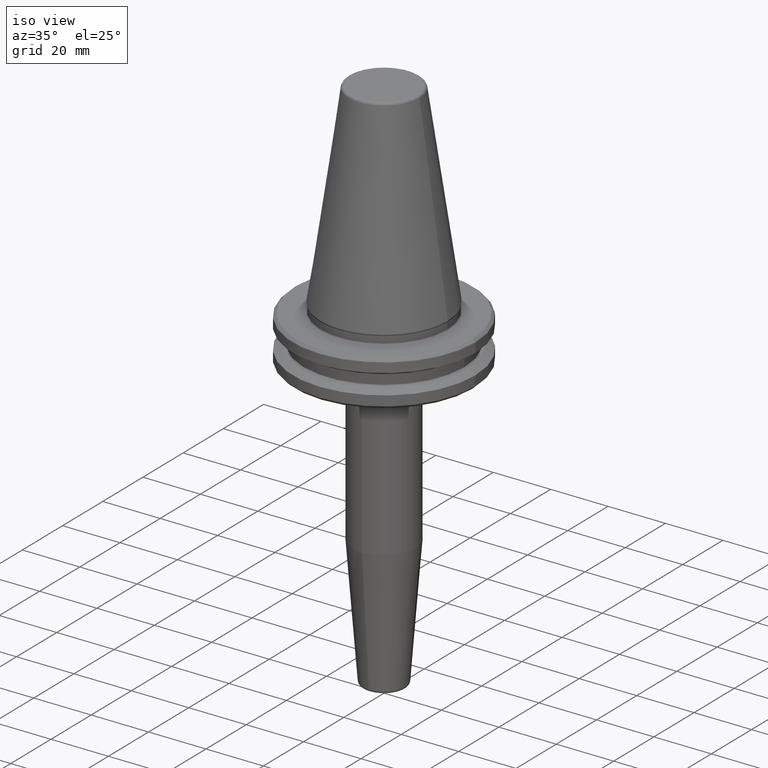
[diagram: clean part render]
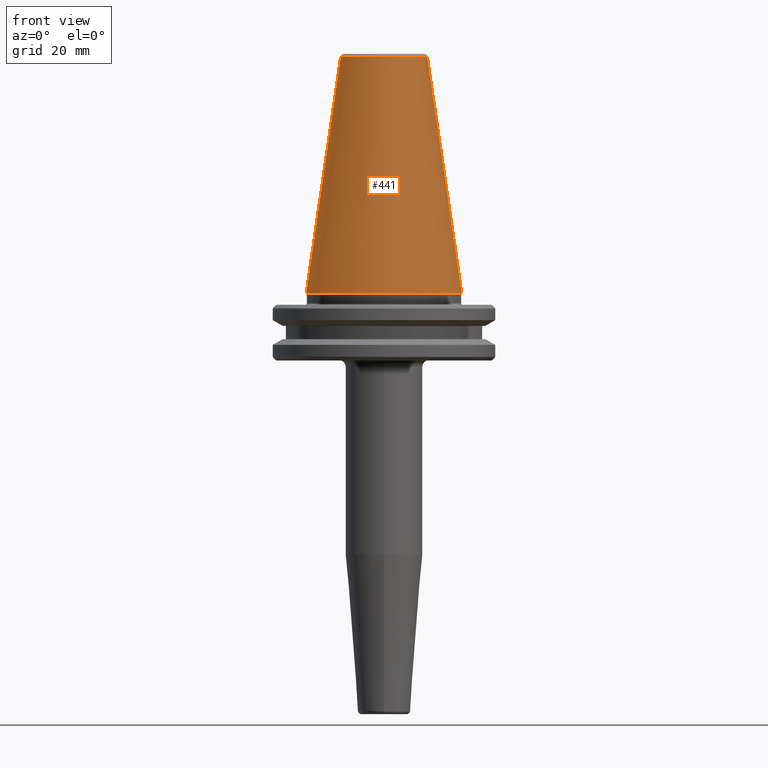
[diagram: tour spotlight — one face highlighted and labeled with its STEP entity id]
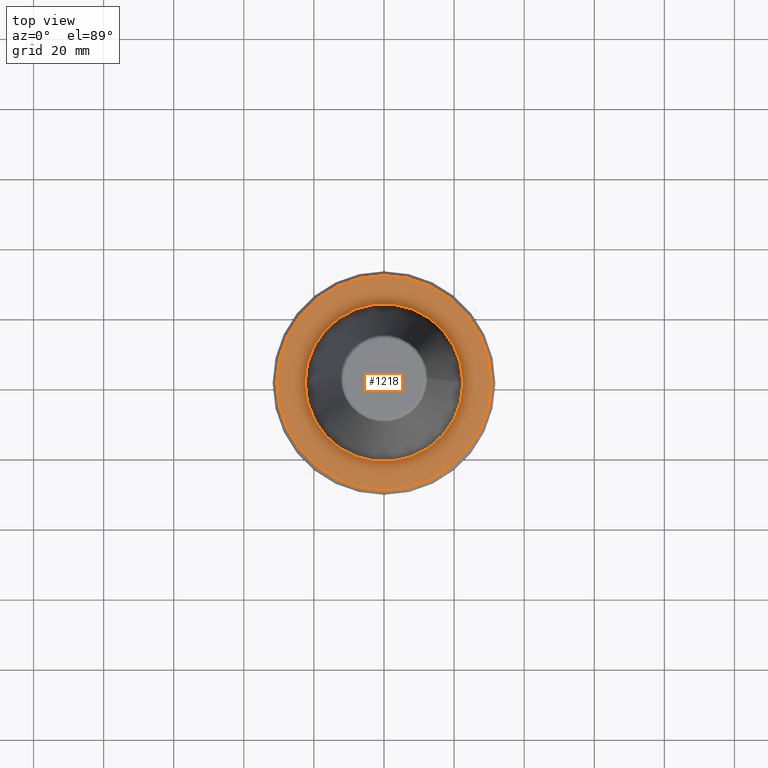
[diagram: tour spotlight — one face highlighted and labeled with its STEP entity id]
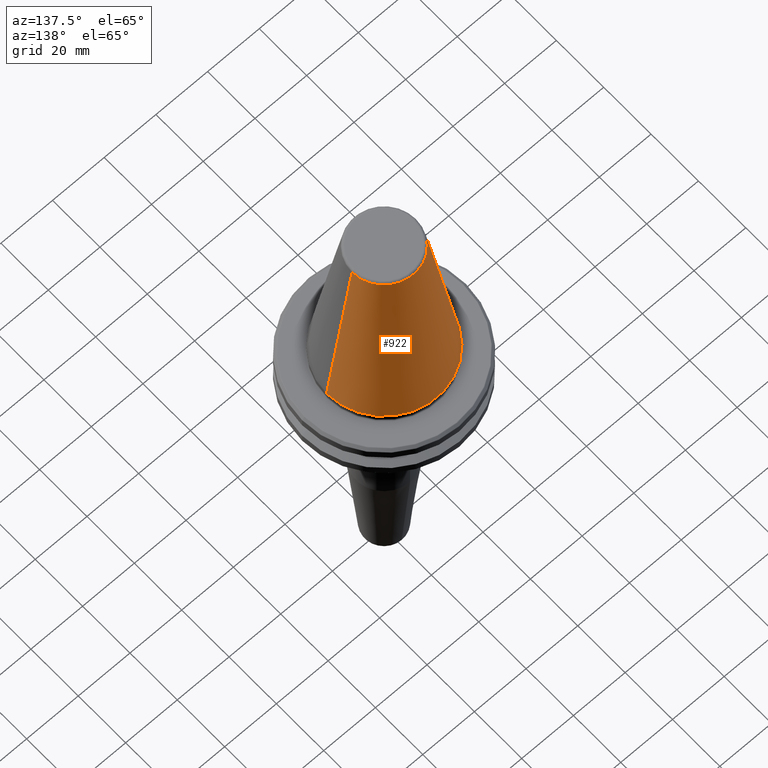
[diagram: tour spotlight — one face highlighted and labeled with its STEP entity id]
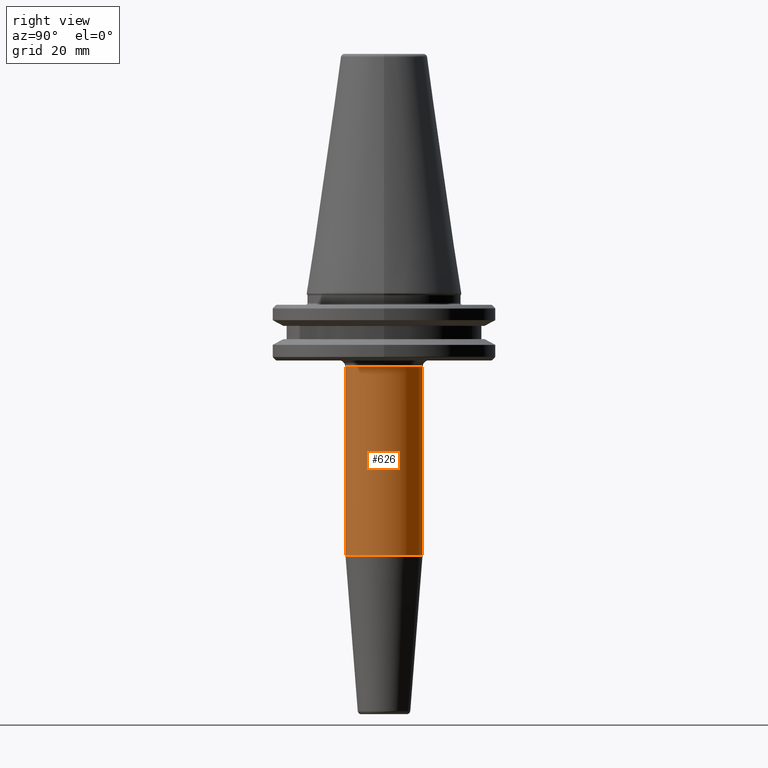
[diagram: tour spotlight — one face highlighted and labeled with its STEP entity id]
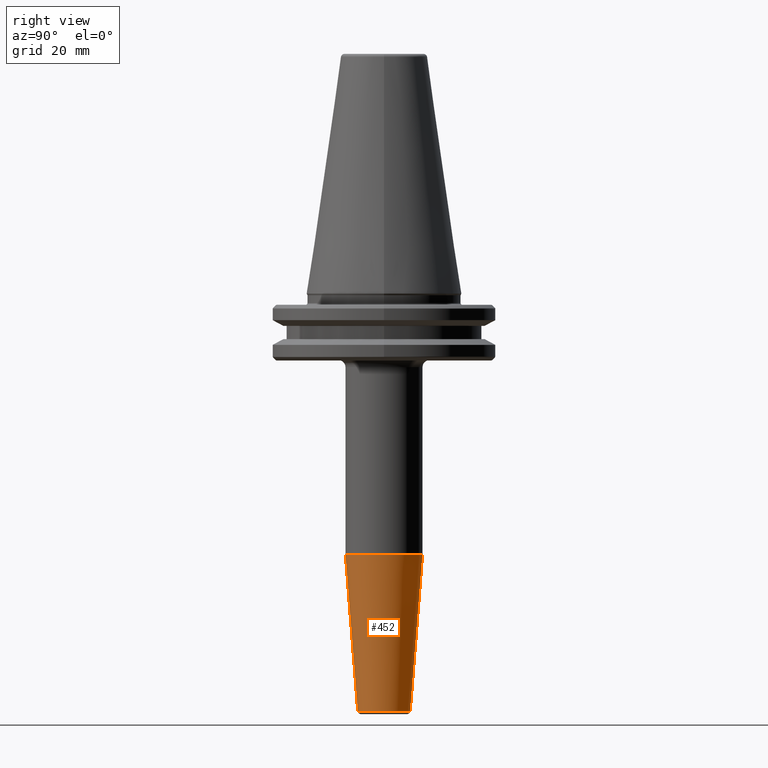
[diagram: tour spotlight — one face highlighted and labeled with its STEP entity id]
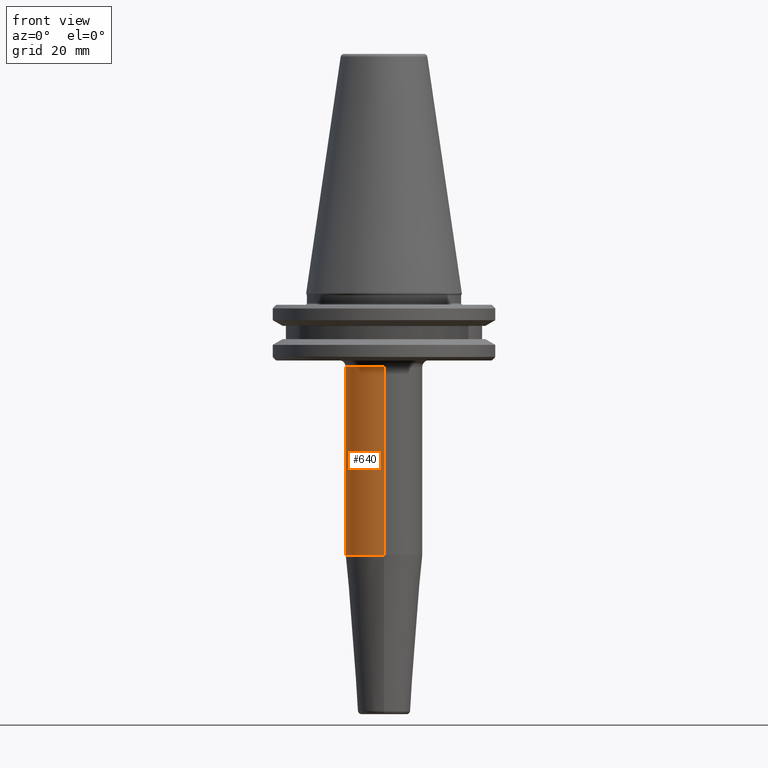
[diagram: tour spotlight — one face highlighted and labeled with its STEP entity id]
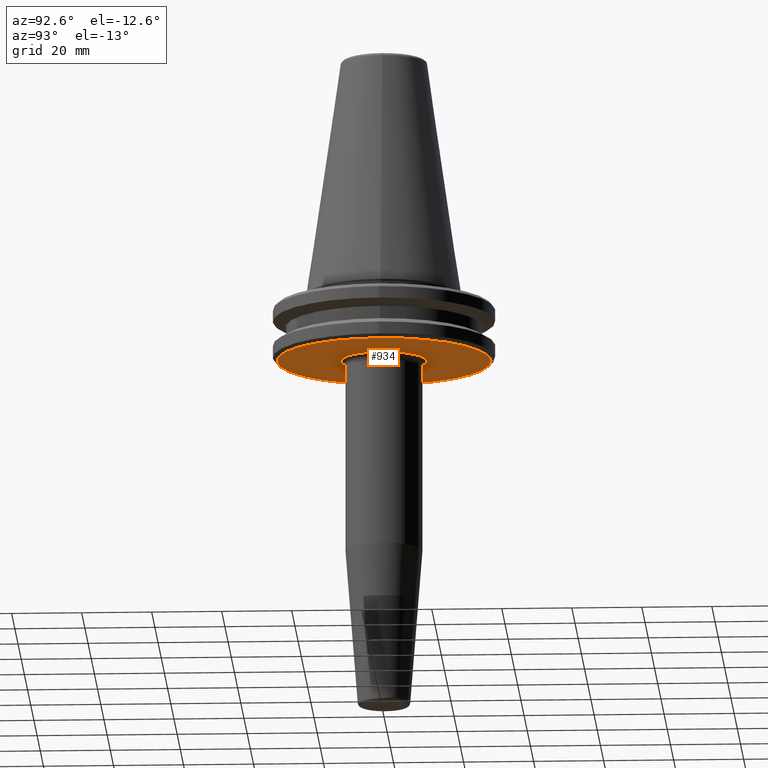
[diagram: tour spotlight — one face highlighted and labeled with its STEP entity id]
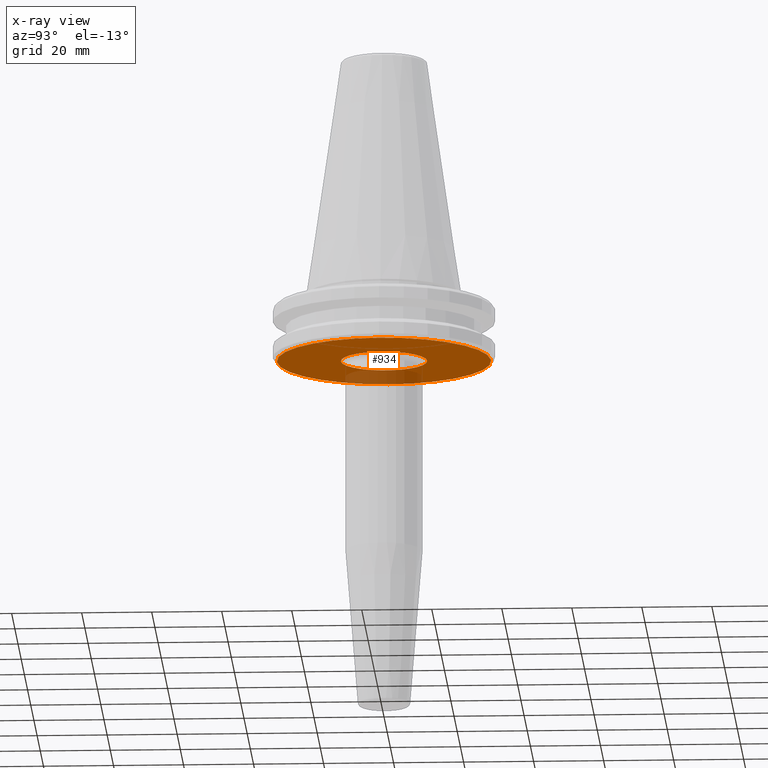
[diagram: x-ray of the same camera — body ghosted, this tour face saturated]
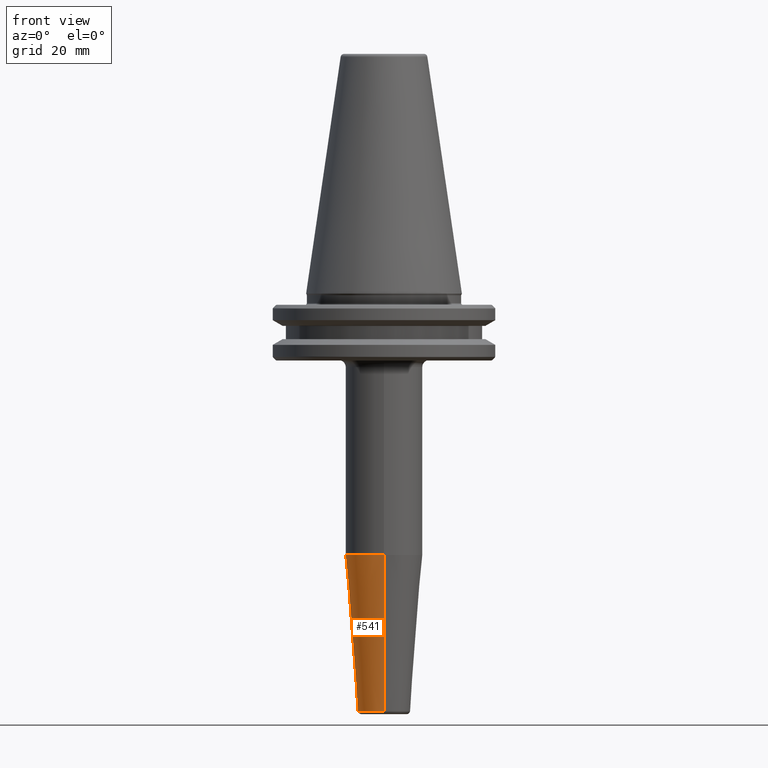
[diagram: tour spotlight — one face highlighted and labeled with its STEP entity id]
A machine part: a face-by-face anatomy tour. The part has 46 B-rep faces; the first image is the clean iso view, then the 8 largest visible faces are spotlighted one at a time (largest first), each with its STEP entity span.

Face 1 — front view, entity #441. In plain terms, the highlighted conical surface has half-angle 8.297 deg.
Definition (entity closure, byte-faithful):
#16 = AXIS2_PLACEMENT_3D ( 'NONE', #113, #208, #683 ) ;
#37 = CARTESIAN_POINT ( 'NONE',  ( 12.37469537611110800, 1.515463108277802100E-015, 67.54430822726729400 ) ) ;
#100 = CARTESIAN_POINT ( 'NONE',  ( 22.22500000000000500, 0.0000000000000000000, 0.0000000000000000000 ) ) ;
#105 = AXIS2_PLACEMENT_3D ( 'NONE', #819, #537, #444 ) ;
#113 = CARTESIAN_POINT ( 'NONE',  ( 0.0000000000000000000, 0.0000000000000000000, 67.54430822726729400 ) ) ;
#208 = DIRECTION ( 'NONE',  ( -0.0000000000000000000, -0.0000000000000000000, 1.000000000000000000 ) ) ;
#237 = VECTOR ( 'NONE', #944, 1000.000000000000000 ) ;
#240 = CARTESIAN_POINT ( 'NONE',  ( 0.0000000000000000000, 0.0000000000000000000, 0.0000000000000000000 ) ) ;
#338 = CIRCLE ( 'NONE', #16, 12.37469537611110800 ) ;
#361 = VERTEX_POINT ( 'NONE', #518 ) ;
#404 = VECTOR ( 'NONE', #1011, 1000.000000000000000 ) ;
#417 = VERTEX_POINT ( 'NONE', #894 ) ;
#441 = ADVANCED_FACE ( 'NONE', ( #953 ), #1137, .T. ) ;
#444 = DIRECTION ( 'NONE',  ( -1.000000000000000000, 0.0000000000000000000, 0.0000000000000000000 ) ) ;
#468 = ORIENTED_EDGE ( 'NONE', *, *, #601, .F. ) ;
#518 = CARTESIAN_POINT ( 'NONE',  ( -22.22500000000000500, 2.721777511104993200E-015, 0.0000000000000000000 ) ) ;
#528 = EDGE_CURVE ( 'NONE', #632, #417, #338, .T. ) ;
#533 = VERTEX_POINT ( 'NONE', #100 ) ;
#537 = DIRECTION ( 'NONE',  ( 0.0000000000000000000, 0.0000000000000000000, -1.000000000000000000 ) ) ;
#601 = EDGE_CURVE ( 'NONE', #417, #533, #655, .T. ) ;
#612 = AXIS2_PLACEMENT_3D ( 'NONE', #240, #1139, #1045 ) ;
#632 = VERTEX_POINT ( 'NONE', #984 ) ;
#655 = LINE ( 'NONE', #37, #404 ) ;
#683 = DIRECTION ( 'NONE',  ( 1.000000000000000000, 0.0000000000000000000, 0.0000000000000000000 ) ) ;
#690 = EDGE_LOOP ( 'NONE', ( #468, #831, #972, #1252 ) ) ;
#819 = CARTESIAN_POINT ( 'NONE',  ( 0.0000000000000000000, 0.0000000000000000000, 67.54430822726729400 ) ) ;
#820 = EDGE_CURVE ( 'NONE', #632, #361, #1009, .T. ) ;
#831 = ORIENTED_EDGE ( 'NONE', *, *, #528, .F. ) ;
#854 = EDGE_CURVE ( 'NONE', #361, #533, #1199, .T. ) ;
#894 = CARTESIAN_POINT ( 'NONE',  ( 12.37469537611110800, 2.118620309691397700E-015, 67.54430822726729400 ) ) ;
#944 = DIRECTION ( 'NONE',  ( -0.1443082272673071000, 0.0000000000000000000, -0.9895327864921743500 ) ) ;
#953 = FACE_OUTER_BOUND ( 'NONE', #690, .T. ) ;
#972 = ORIENTED_EDGE ( 'NONE', *, *, #820, .T. ) ;
#984 = CARTESIAN_POINT ( 'NONE',  ( -12.37469537611110800, 0.0000000000000000000, 67.54430822726729400 ) ) ;
#1009 = LINE ( 'NONE', #1014, #237 ) ;
#1011 = DIRECTION ( 'NONE',  ( 0.1443082272673071000, 1.767266086135364600E-017, -0.9895327864921743500 ) ) ;
#1014 = CARTESIAN_POINT ( 'NONE',  ( -12.37469537611110800, 0.0000000000000000000, 67.54430822726729400 ) ) ;
#1045 = DIRECTION ( 'NONE',  ( 1.000000000000000000, 0.0000000000000000000, 0.0000000000000000000 ) ) ;
#1137 = CONICAL_SURFACE ( 'NONE', #105, 12.37469537611110800, 0.1448138465474191100 ) ;
#1139 = DIRECTION ( 'NONE',  ( -0.0000000000000000000, -0.0000000000000000000, 1.000000000000000000 ) ) ;
#1199 = CIRCLE ( 'NONE', #612, 22.22500000000000500 ) ;
#1252 = ORIENTED_EDGE ( 'NONE', *, *, #854, .T. ) ;

Face 2 — top view, entity #1218. In plain terms, the highlighted planar face has unit normal (0, -0, 1).
Definition (entity closure, byte-faithful):
#35 = ORIENTED_EDGE ( 'NONE', *, *, #281, .T. ) ;
#39 = AXIS2_PLACEMENT_3D ( 'NONE', #358, #1031, #458 ) ;
#55 = CARTESIAN_POINT ( 'NONE',  ( 0.0000000000000000000, 0.0000000000000000000, -3.199999999999994400 ) ) ;
#58 = DIRECTION ( 'NONE',  ( -0.0000000000000000000, -0.0000000000000000000, 1.000000000000000000 ) ) ;
#80 = DIRECTION ( 'NONE',  ( 1.000000000000000000, 0.0000000000000000000, 0.0000000000000000000 ) ) ;
#121 = ORIENTED_EDGE ( 'NONE', *, *, #384, .F. ) ;
#170 = CARTESIAN_POINT ( 'NONE',  ( -22.50000000000000000, 2.755455298081544800E-015, -3.199999999999996600 ) ) ;
#194 = EDGE_LOOP ( 'NONE', ( #245, #35 ) ) ;
#245 = ORIENTED_EDGE ( 'NONE', *, *, #906, .T. ) ;
#281 = EDGE_CURVE ( 'NONE', #611, #427, #1116, .T. ) ;
#301 = DIRECTION ( 'NONE',  ( 1.000000000000000000, 0.0000000000000000000, 0.0000000000000000000 ) ) ;
#325 = AXIS2_PLACEMENT_3D ( 'NONE', #399, #880, #301 ) ;
#344 = EDGE_CURVE ( 'NONE', #636, #347, #748, .T. ) ;
#347 = VERTEX_POINT ( 'NONE', #170 ) ;
#358 = CARTESIAN_POINT ( 'NONE',  ( 0.0000000000000000000, 0.0000000000000000000, -3.200000000000000200 ) ) ;
#363 = CARTESIAN_POINT ( 'NONE',  ( 0.0000000000000000000, 0.0000000000000000000, -3.199999999999994400 ) ) ;
#384 = EDGE_CURVE ( 'NONE', #347, #636, #471, .T. ) ;
#399 = CARTESIAN_POINT ( 'NONE',  ( 0.0000000000000000000, 0.0000000000000000000, -3.199999999999994400 ) ) ;
#427 = VERTEX_POINT ( 'NONE', #1084 ) ;
#458 = DIRECTION ( 'NONE',  ( 1.000000000000000000, 0.0000000000000000000, 0.0000000000000000000 ) ) ;
#464 = FACE_BOUND ( 'NONE', #863, .T. ) ;
#471 = CIRCLE ( 'NONE', #325, 22.50000000000000000 ) ;
#472 = DIRECTION ( 'NONE',  ( -0.0000000000000000000, -0.0000000000000000000, 1.000000000000000000 ) ) ;
#514 = CARTESIAN_POINT ( 'NONE',  ( 22.50000000000000000, 0.0000000000000000000, -3.199999999999996600 ) ) ;
#552 = AXIS2_PLACEMENT_3D ( 'NONE', #638, #58, #735 ) ;
#589 = AXIS2_PLACEMENT_3D ( 'NONE', #55, #472, #80 ) ;
#611 = VERTEX_POINT ( 'NONE', #913 ) ;
#636 = VERTEX_POINT ( 'NONE', #514 ) ;
#638 = CARTESIAN_POINT ( 'NONE',  ( 0.0000000000000000000, 0.0000000000000000000, -3.199999999999994400 ) ) ;
#656 = AXIS2_PLACEMENT_3D ( 'NONE', #363, #850, #1237 ) ;
#735 = DIRECTION ( 'NONE',  ( 1.000000000000000000, 0.0000000000000000000, 0.0000000000000000000 ) ) ;
#748 = CIRCLE ( 'NONE', #589, 22.50000000000000000 ) ;
#850 = DIRECTION ( 'NONE',  ( -0.0000000000000000000, -0.0000000000000000000, 1.000000000000000000 ) ) ;
#863 = EDGE_LOOP ( 'NONE', ( #1189, #121 ) ) ;
#880 = DIRECTION ( 'NONE',  ( -0.0000000000000000000, -0.0000000000000000000, 1.000000000000000000 ) ) ;
#906 = EDGE_CURVE ( 'NONE', #427, #611, #914, .T. ) ;
#913 = CARTESIAN_POINT ( 'NONE',  ( -30.58431457505076200, 3.762817415969875600E-015, -3.199999999999994400 ) ) ;
#914 = CIRCLE ( 'NONE', #552, 30.58431457505076200 ) ;
#940 = PLANE ( 'NONE',  #39 ) ;
#976 = FACE_OUTER_BOUND ( 'NONE', #194, .T. ) ;
#1031 = DIRECTION ( 'NONE',  ( 0.0000000000000000000, -0.0000000000000000000, 1.000000000000000000 ) ) ;
#1084 = CARTESIAN_POINT ( 'NONE',  ( 30.58431457505076200, 0.0000000000000000000, -3.199999999999994400 ) ) ;
#1116 = CIRCLE ( 'NONE', #656, 30.58431457505076200 ) ;
#1189 = ORIENTED_EDGE ( 'NONE', *, *, #344, .F. ) ;
#1218 = ADVANCED_FACE ( 'NONE', ( #976, #464 ), #940, .T. ) ;
#1237 = DIRECTION ( 'NONE',  ( 1.000000000000000000, 0.0000000000000000000, 0.0000000000000000000 ) ) ;

Face 3 — auxiliary view, entity #922. In plain terms, the highlighted conical surface has half-angle 8.297 deg.
Definition (entity closure, byte-faithful):
#37 = CARTESIAN_POINT ( 'NONE',  ( 12.37469537611110800, 1.515463108277802100E-015, 67.54430822726729400 ) ) ;
#40 = EDGE_CURVE ( 'NONE', #533, #361, #298, .T. ) ;
#100 = CARTESIAN_POINT ( 'NONE',  ( 22.22500000000000500, 0.0000000000000000000, 0.0000000000000000000 ) ) ;
#102 = ORIENTED_EDGE ( 'NONE', *, *, #40, .T. ) ;
#107 = CONICAL_SURFACE ( 'NONE', #512, 12.37469537611110800, 0.1448138465474191100 ) ;
#149 = ORIENTED_EDGE ( 'NONE', *, *, #911, .F. ) ;
#164 = ORIENTED_EDGE ( 'NONE', *, *, #820, .F. ) ;
#237 = VECTOR ( 'NONE', #944, 1000.000000000000000 ) ;
#259 = CARTESIAN_POINT ( 'NONE',  ( 0.0000000000000000000, 0.0000000000000000000, 67.54430822726729400 ) ) ;
#298 = CIRCLE ( 'NONE', #1089, 22.22500000000000500 ) ;
#348 = DIRECTION ( 'NONE',  ( -1.000000000000000000, 0.0000000000000000000, 0.0000000000000000000 ) ) ;
#357 = DIRECTION ( 'NONE',  ( -0.0000000000000000000, -0.0000000000000000000, 1.000000000000000000 ) ) ;
#361 = VERTEX_POINT ( 'NONE', #518 ) ;
#400 = FACE_OUTER_BOUND ( 'NONE', #1012, .T. ) ;
#404 = VECTOR ( 'NONE', #1011, 1000.000000000000000 ) ;
#417 = VERTEX_POINT ( 'NONE', #894 ) ;
#512 = AXIS2_PLACEMENT_3D ( 'NONE', #259, #549, #348 ) ;
#518 = CARTESIAN_POINT ( 'NONE',  ( -22.22500000000000500, 2.721777511104993200E-015, 0.0000000000000000000 ) ) ;
#533 = VERTEX_POINT ( 'NONE', #100 ) ;
#545 = AXIS2_PLACEMENT_3D ( 'NONE', #939, #357, #1030 ) ;
#549 = DIRECTION ( 'NONE',  ( 0.0000000000000000000, 0.0000000000000000000, -1.000000000000000000 ) ) ;
#579 = DIRECTION ( 'NONE',  ( -0.0000000000000000000, -0.0000000000000000000, 1.000000000000000000 ) ) ;
#601 = EDGE_CURVE ( 'NONE', #417, #533, #655, .T. ) ;
#632 = VERTEX_POINT ( 'NONE', #984 ) ;
#650 = CIRCLE ( 'NONE', #545, 12.37469537611110800 ) ;
#655 = LINE ( 'NONE', #37, #404 ) ;
#679 = CARTESIAN_POINT ( 'NONE',  ( 0.0000000000000000000, 0.0000000000000000000, 0.0000000000000000000 ) ) ;
#820 = EDGE_CURVE ( 'NONE', #632, #361, #1009, .T. ) ;
#894 = CARTESIAN_POINT ( 'NONE',  ( 12.37469537611110800, 2.118620309691397700E-015, 67.54430822726729400 ) ) ;
#911 = EDGE_CURVE ( 'NONE', #417, #632, #650, .T. ) ;
#922 = ADVANCED_FACE ( 'NONE', ( #400 ), #107, .T. ) ;
#939 = CARTESIAN_POINT ( 'NONE',  ( 0.0000000000000000000, 0.0000000000000000000, 67.54430822726729400 ) ) ;
#944 = DIRECTION ( 'NONE',  ( -0.1443082272673071000, 0.0000000000000000000, -0.9895327864921743500 ) ) ;
#984 = CARTESIAN_POINT ( 'NONE',  ( -12.37469537611110800, 0.0000000000000000000, 67.54430822726729400 ) ) ;
#1009 = LINE ( 'NONE', #1014, #237 ) ;
#1011 = DIRECTION ( 'NONE',  ( 0.1443082272673071000, 1.767266086135364600E-017, -0.9895327864921743500 ) ) ;
#1012 = EDGE_LOOP ( 'NONE', ( #149, #1148, #102, #164 ) ) ;
#1014 = CARTESIAN_POINT ( 'NONE',  ( -12.37469537611110800, 0.0000000000000000000, 67.54430822726729400 ) ) ;
#1030 = DIRECTION ( 'NONE',  ( 1.000000000000000000, 0.0000000000000000000, 0.0000000000000000000 ) ) ;
#1089 = AXIS2_PLACEMENT_3D ( 'NONE', #679, #579, #1259 ) ;
#1148 = ORIENTED_EDGE ( 'NONE', *, *, #601, .T. ) ;
#1259 = DIRECTION ( 'NONE',  ( 1.000000000000000000, 0.0000000000000000000, 0.0000000000000000000 ) ) ;

Face 4 — right view, entity #626. In plain terms, the highlighted cylindrical surface (partial cylindrical patch) has radius 11 mm, axis along (-0, 0, -1).
Definition (entity closure, byte-faithful):
#34 = DIRECTION ( 'NONE',  ( -0.0000000000000000000, 1.946757673717420000E-016, -1.000000000000000000 ) ) ;
#42 = AXIS2_PLACEMENT_3D ( 'NONE', #396, #795, #778 ) ;
#95 = ORIENTED_EDGE ( 'NONE', *, *, #489, .F. ) ;
#108 = LINE ( 'NONE', #331, #853 ) ;
#156 = CARTESIAN_POINT ( 'NONE',  ( 0.0000000000000000000, 10.99999999999999800, -20.98284271247460400 ) ) ;
#184 = EDGE_CURVE ( 'NONE', #1215, #703, #186, .T. ) ;
#186 = LINE ( 'NONE', #983, #693 ) ;
#200 = DIRECTION ( 'NONE',  ( -0.0000000000000000000, 1.946757673717420000E-016, -1.000000000000000000 ) ) ;
#321 = ORIENTED_EDGE ( 'NONE', *, *, #502, .F. ) ;
#331 = CARTESIAN_POINT ( 'NONE',  ( 0.0000000000000000000, 11.00000000000001200, -120.0000000000000000 ) ) ;
#392 = CARTESIAN_POINT ( 'NONE',  ( 0.0000000000000000000, -11.00000000000001400, -74.60674251911153500 ) ) ;
#396 = CARTESIAN_POINT ( 'NONE',  ( 0.0000000000000000000, -6.440995650636750700E-015, -74.60674251911153500 ) ) ;
#436 = VERTEX_POINT ( 'NONE', #912 ) ;
#489 = EDGE_CURVE ( 'NONE', #1213, #436, #108, .T. ) ;
#502 = EDGE_CURVE ( 'NONE', #436, #703, #1105, .T. ) ;
#534 = CARTESIAN_POINT ( 'NONE',  ( 0.0000000000000000000, 2.395971582958279500E-015, -120.0000000000000000 ) ) ;
#615 = DIRECTION ( 'NONE',  ( 0.0000000000000000000, 1.000000000000000000, 0.0000000000000000000 ) ) ;
#626 = ADVANCED_FACE ( 'NONE', ( #627 ), #1108, .T. ) ;
#627 = FACE_OUTER_BOUND ( 'NONE', #1124, .T. ) ;
#693 = VECTOR ( 'NONE', #1255, 1000.000000000000000 ) ;
#703 = VERTEX_POINT ( 'NONE', #392 ) ;
#775 = CARTESIAN_POINT ( 'NONE',  ( 0.0000000000000000000, -1.688026949495919900E-014, -20.98284271247460700 ) ) ;
#778 = DIRECTION ( 'NONE',  ( 0.0000000000000000000, 1.000000000000000000, 0.0000000000000000000 ) ) ;
#788 = AXIS2_PLACEMENT_3D ( 'NONE', #775, #200, #873 ) ;
#795 = DIRECTION ( 'NONE',  ( -0.0000000000000000000, 1.946757673717420000E-016, -1.000000000000000000 ) ) ;
#835 = CARTESIAN_POINT ( 'NONE',  ( 1.347111479062091200E-015, -11.00000000000003400, -20.98284271247461100 ) ) ;
#853 = VECTOR ( 'NONE', #1160, 1000.000000000000000 ) ;
#873 = DIRECTION ( 'NONE',  ( 0.0000000000000000000, 1.000000000000000000, 3.154042683594190700E-016 ) ) ;
#912 = CARTESIAN_POINT ( 'NONE',  ( 1.347111479062089600E-015, 11.00000000000000200, -74.60674251911153500 ) ) ;
#983 = CARTESIAN_POINT ( 'NONE',  ( 1.347111479062090000E-015, -11.00000000000001100, -120.0000000000000000 ) ) ;
#995 = ORIENTED_EDGE ( 'NONE', *, *, #184, .T. ) ;
#1059 = EDGE_CURVE ( 'NONE', #1213, #1215, #1251, .T. ) ;
#1105 = CIRCLE ( 'NONE', #42, 11.00000000000000900 ) ;
#1108 = CYLINDRICAL_SURFACE ( 'NONE', #1115, 11.00000000000001100 ) ;
#1115 = AXIS2_PLACEMENT_3D ( 'NONE', #534, #34, #615 ) ;
#1124 = EDGE_LOOP ( 'NONE', ( #1236, #995, #321, #95 ) ) ;
#1160 = DIRECTION ( 'NONE',  ( -0.0000000000000000000, 1.946757673717420000E-016, -1.000000000000000000 ) ) ;
#1213 = VERTEX_POINT ( 'NONE', #156 ) ;
#1215 = VERTEX_POINT ( 'NONE', #835 ) ;
#1236 = ORIENTED_EDGE ( 'NONE', *, *, #1059, .T. ) ;
#1251 = CIRCLE ( 'NONE', #788, 11.00000000000001400 ) ;
#1255 = DIRECTION ( 'NONE',  ( -0.0000000000000000000, 1.946757673717420000E-016, -1.000000000000000000 ) ) ;

Face 5 — right view, entity #452. In plain terms, the highlighted conical surface has half-angle 4.5 deg.
Definition (entity closure, byte-faithful):
#20 = LINE ( 'NONE', #971, #249 ) ;
#36 = DIRECTION ( 'NONE',  ( 0.0000000000000000000, -1.946757673717420000E-016, 1.000000000000000000 ) ) ;
#42 = AXIS2_PLACEMENT_3D ( 'NONE', #396, #795, #778 ) ;
#90 = AXIS2_PLACEMENT_3D ( 'NONE', #542, #36, #812 ) ;
#114 = EDGE_CURVE ( 'NONE', #393, #703, #20, .T. ) ;
#131 = CARTESIAN_POINT ( 'NONE',  ( 0.0000000000000000000, 7.500000000000000000, -119.0784590957278200 ) ) ;
#155 = EDGE_CURVE ( 'NONE', #617, #393, #964, .T. ) ;
#221 = CARTESIAN_POINT ( 'NONE',  ( 9.184850993605146000E-016, 7.500000000000000000, -119.0784590957278200 ) ) ;
#249 = VECTOR ( 'NONE', #278, 1000.000000000000000 ) ;
#278 = DIRECTION ( 'NONE',  ( 0.0000000000000000000, -0.07845909572783692200, 0.9969173337331286300 ) ) ;
#366 = ORIENTED_EDGE ( 'NONE', *, *, #114, .F. ) ;
#381 = ORIENTED_EDGE ( 'NONE', *, *, #155, .F. ) ;
#392 = CARTESIAN_POINT ( 'NONE',  ( 0.0000000000000000000, -11.00000000000001400, -74.60674251911153500 ) ) ;
#393 = VERTEX_POINT ( 'NONE', #1074 ) ;
#396 = CARTESIAN_POINT ( 'NONE',  ( 0.0000000000000000000, -6.440995650636750700E-015, -74.60674251911153500 ) ) ;
#401 = FACE_OUTER_BOUND ( 'NONE', #619, .T. ) ;
#436 = VERTEX_POINT ( 'NONE', #912 ) ;
#450 = ORIENTED_EDGE ( 'NONE', *, *, #757, .T. ) ;
#452 = ADVANCED_FACE ( 'NONE', ( #401 ), #625, .T. ) ;
#491 = LINE ( 'NONE', #221, #1217 ) ;
#502 = EDGE_CURVE ( 'NONE', #436, #703, #1105, .T. ) ;
#542 = CARTESIAN_POINT ( 'NONE',  ( 0.0000000000000000000, 2.216569900254645900E-015, -119.0784590957278200 ) ) ;
#617 = VERTEX_POINT ( 'NONE', #131 ) ;
#619 = EDGE_LOOP ( 'NONE', ( #381, #450, #909, #366 ) ) ;
#625 = CONICAL_SURFACE ( 'NONE', #90, 7.499999999999997300, 0.07853981633973658400 ) ;
#703 = VERTEX_POINT ( 'NONE', #392 ) ;
#757 = EDGE_CURVE ( 'NONE', #617, #436, #491, .T. ) ;
#778 = DIRECTION ( 'NONE',  ( 0.0000000000000000000, 1.000000000000000000, 0.0000000000000000000 ) ) ;
#790 = DIRECTION ( 'NONE',  ( 0.0000000000000000000, 1.000000000000000000, 0.0000000000000000000 ) ) ;
#792 = DIRECTION ( 'NONE',  ( 9.608468044709102800E-018, 0.07845909572783652000, 0.9969173337331286300 ) ) ;
#795 = DIRECTION ( 'NONE',  ( -0.0000000000000000000, 1.946757673717420000E-016, -1.000000000000000000 ) ) ;
#796 = CARTESIAN_POINT ( 'NONE',  ( 0.0000000000000000000, 2.216569900254645900E-015, -119.0784590957278200 ) ) ;
#812 = DIRECTION ( 'NONE',  ( 0.0000000000000000000, -1.000000000000000000, 0.0000000000000000000 ) ) ;
#870 = DIRECTION ( 'NONE',  ( -0.0000000000000000000, 1.946757673717420000E-016, -1.000000000000000000 ) ) ;
#909 = ORIENTED_EDGE ( 'NONE', *, *, #502, .T. ) ;
#912 = CARTESIAN_POINT ( 'NONE',  ( 1.347111479062089600E-015, 11.00000000000000200, -74.60674251911153500 ) ) ;
#925 = AXIS2_PLACEMENT_3D ( 'NONE', #796, #870, #790 ) ;
#964 = CIRCLE ( 'NONE', #925, 7.499999999999997300 ) ;
#971 = CARTESIAN_POINT ( 'NONE',  ( 0.0000000000000000000, -7.499999999999994700, -119.0784590957278200 ) ) ;
#1074 = CARTESIAN_POINT ( 'NONE',  ( 9.184850993605146000E-016, -7.499999999999994700, -119.0784590957278200 ) ) ;
#1105 = CIRCLE ( 'NONE', #42, 11.00000000000000900 ) ;
#1217 = VECTOR ( 'NONE', #792, 1000.000000000000000 ) ;

Face 6 — front view, entity #640. In plain terms, the highlighted cylindrical surface (partial cylindrical patch) has radius 11 mm, axis along (-0, 0, -1).
Definition (entity closure, byte-faithful):
#7 = DIRECTION ( 'NONE',  ( -0.0000000000000000000, 1.946757673717420000E-016, -1.000000000000000000 ) ) ;
#26 = CIRCLE ( 'NONE', #343, 11.00000000000001400 ) ;
#108 = LINE ( 'NONE', #331, #853 ) ;
#116 = ORIENTED_EDGE ( 'NONE', *, *, #718, .T. ) ;
#123 = ORIENTED_EDGE ( 'NONE', *, *, #1180, .F. ) ;
#156 = CARTESIAN_POINT ( 'NONE',  ( 0.0000000000000000000, 10.99999999999999800, -20.98284271247460400 ) ) ;
#184 = EDGE_CURVE ( 'NONE', #1215, #703, #186, .T. ) ;
#186 = LINE ( 'NONE', #983, #693 ) ;
#222 = DIRECTION ( 'NONE',  ( -0.0000000000000000000, 1.946757673717420000E-016, -1.000000000000000000 ) ) ;
#319 = DIRECTION ( 'NONE',  ( 0.0000000000000000000, 1.000000000000000000, 3.154042683594190700E-016 ) ) ;
#331 = CARTESIAN_POINT ( 'NONE',  ( 0.0000000000000000000, 11.00000000000001200, -120.0000000000000000 ) ) ;
#343 = AXIS2_PLACEMENT_3D ( 'NONE', #526, #700, #319 ) ;
#392 = CARTESIAN_POINT ( 'NONE',  ( 0.0000000000000000000, -11.00000000000001400, -74.60674251911153500 ) ) ;
#436 = VERTEX_POINT ( 'NONE', #912 ) ;
#484 = AXIS2_PLACEMENT_3D ( 'NONE', #797, #222, #891 ) ;
#489 = EDGE_CURVE ( 'NONE', #1213, #436, #108, .T. ) ;
#526 = CARTESIAN_POINT ( 'NONE',  ( 0.0000000000000000000, -1.688026949495919900E-014, -20.98284271247460700 ) ) ;
#640 = ADVANCED_FACE ( 'NONE', ( #855 ), #825, .T. ) ;
#693 = VECTOR ( 'NONE', #1255, 1000.000000000000000 ) ;
#700 = DIRECTION ( 'NONE',  ( -0.0000000000000000000, 1.946757673717420000E-016, -1.000000000000000000 ) ) ;
#703 = VERTEX_POINT ( 'NONE', #392 ) ;
#718 = EDGE_CURVE ( 'NONE', #1215, #1213, #26, .T. ) ;
#773 = CARTESIAN_POINT ( 'NONE',  ( 0.0000000000000000000, 2.395971582958279500E-015, -120.0000000000000000 ) ) ;
#780 = DIRECTION ( 'NONE',  ( 0.0000000000000000000, 1.000000000000000000, 0.0000000000000000000 ) ) ;
#797 = CARTESIAN_POINT ( 'NONE',  ( 0.0000000000000000000, -6.440995650636750700E-015, -74.60674251911153500 ) ) ;
#825 = CYLINDRICAL_SURFACE ( 'NONE', #1078, 11.00000000000001100 ) ;
#835 = CARTESIAN_POINT ( 'NONE',  ( 1.347111479062091200E-015, -11.00000000000003400, -20.98284271247461100 ) ) ;
#853 = VECTOR ( 'NONE', #1160, 1000.000000000000000 ) ;
#855 = FACE_OUTER_BOUND ( 'NONE', #1060, .T. ) ;
#891 = DIRECTION ( 'NONE',  ( 0.0000000000000000000, 1.000000000000000000, 0.0000000000000000000 ) ) ;
#912 = CARTESIAN_POINT ( 'NONE',  ( 1.347111479062089600E-015, 11.00000000000000200, -74.60674251911153500 ) ) ;
#929 = ORIENTED_EDGE ( 'NONE', *, *, #184, .F. ) ;
#983 = CARTESIAN_POINT ( 'NONE',  ( 1.347111479062090000E-015, -11.00000000000001100, -120.0000000000000000 ) ) ;
#1060 = EDGE_LOOP ( 'NONE', ( #929, #116, #1167, #123 ) ) ;
#1078 = AXIS2_PLACEMENT_3D ( 'NONE', #773, #7, #780 ) ;
#1121 = CIRCLE ( 'NONE', #484, 11.00000000000000900 ) ;
#1160 = DIRECTION ( 'NONE',  ( -0.0000000000000000000, 1.946757673717420000E-016, -1.000000000000000000 ) ) ;
#1167 = ORIENTED_EDGE ( 'NONE', *, *, #489, .T. ) ;
#1180 = EDGE_CURVE ( 'NONE', #703, #436, #1121, .T. ) ;
#1213 = VERTEX_POINT ( 'NONE', #156 ) ;
#1215 = VERTEX_POINT ( 'NONE', #835 ) ;
#1255 = DIRECTION ( 'NONE',  ( -0.0000000000000000000, 1.946757673717420000E-016, -1.000000000000000000 ) ) ;

Face 7 — auxiliary view, entity #934. An x-ray twin of the same camera follows (body ghosted, this face saturated) — the face is partly hidden behind the body. In plain terms, the highlighted planar face has unit normal (0, 0, -1).
Definition (entity closure, byte-faithful):
#2 = DIRECTION ( 'NONE',  ( 1.000000000000000000, 0.0000000000000000000, 0.0000000000000000000 ) ) ;
#22 = CARTESIAN_POINT ( 'NONE',  ( 0.0000000000000000000, -1.734723475976807100E-014, -19.10000000000000500 ) ) ;
#61 = PLANE ( 'NONE',  #646 ) ;
#160 = DIRECTION ( 'NONE',  ( 0.0000000000000000000, 0.0000000000000000000, -1.000000000000000000 ) ) ;
#173 = FACE_OUTER_BOUND ( 'NONE', #224, .T. ) ;
#174 = AXIS2_PLACEMENT_3D ( 'NONE', #22, #1176, #994 ) ;
#195 = ORIENTED_EDGE ( 'NONE', *, *, #750, .F. ) ;
#213 = CARTESIAN_POINT ( 'NONE',  ( 1.509442672782545800E-015, -12.32553478956937300, -19.10000000000000500 ) ) ;
#224 = EDGE_LOOP ( 'NONE', ( #844, #910 ) ) ;
#374 = CIRCLE ( 'NONE', #684, 12.32553478956935000 ) ;
#426 = VERTEX_POINT ( 'NONE', #597 ) ;
#457 = CARTESIAN_POINT ( 'NONE',  ( 0.0000000000000000000, 2.166680460328873200E-015, -19.10000000000000500 ) ) ;
#497 = DIRECTION ( 'NONE',  ( -0.0000000000000000000, -0.0000000000000000000, 1.000000000000000000 ) ) ;
#559 = DIRECTION ( 'NONE',  ( -1.000000000000000000, 0.0000000000000000000, -0.0000000000000000000 ) ) ;
#572 = CIRCLE ( 'NONE', #618, 30.58431457505076500 ) ;
#573 = CIRCLE ( 'NONE', #174, 12.32553478956935000 ) ;
#585 = DIRECTION ( 'NONE',  ( -0.0000000000000000000, -0.0000000000000000000, 1.000000000000000000 ) ) ;
#597 = CARTESIAN_POINT ( 'NONE',  ( 0.0000000000000000000, 12.32553478956932800, -19.10000000000000500 ) ) ;
#618 = AXIS2_PLACEMENT_3D ( 'NONE', #1051, #497, #1153 ) ;
#623 = FACE_BOUND ( 'NONE', #931, .T. ) ;
#646 = AXIS2_PLACEMENT_3D ( 'NONE', #457, #1126, #559 ) ;
#684 = AXIS2_PLACEMENT_3D ( 'NONE', #741, #160, #839 ) ;
#731 = VERTEX_POINT ( 'NONE', #800 ) ;
#738 = VERTEX_POINT ( 'NONE', #213 ) ;
#741 = CARTESIAN_POINT ( 'NONE',  ( 0.0000000000000000000, -1.734723475976807100E-014, -19.10000000000000500 ) ) ;
#750 = EDGE_CURVE ( 'NONE', #738, #426, #573, .T. ) ;
#763 = CIRCLE ( 'NONE', #920, 30.58431457505076500 ) ;
#800 = CARTESIAN_POINT ( 'NONE',  ( 30.58431457505076500, 0.0000000000000000000, -19.10000000000000500 ) ) ;
#839 = DIRECTION ( 'NONE',  ( 1.000000000000000000, 0.0000000000000000000, 0.0000000000000000000 ) ) ;
#844 = ORIENTED_EDGE ( 'NONE', *, *, #1015, .F. ) ;
#910 = ORIENTED_EDGE ( 'NONE', *, *, #1054, .F. ) ;
#920 = AXIS2_PLACEMENT_3D ( 'NONE', #1155, #585, #2 ) ;
#923 = EDGE_CURVE ( 'NONE', #426, #738, #374, .T. ) ;
#931 = EDGE_LOOP ( 'NONE', ( #999, #195 ) ) ;
#934 = ADVANCED_FACE ( 'NONE', ( #623, #173 ), #61, .T. ) ;
#938 = VERTEX_POINT ( 'NONE', #948 ) ;
#948 = CARTESIAN_POINT ( 'NONE',  ( -30.58431457505076500, 3.762817415969875600E-015, -19.10000000000000500 ) ) ;
#994 = DIRECTION ( 'NONE',  ( 1.000000000000000000, 0.0000000000000000000, 0.0000000000000000000 ) ) ;
#999 = ORIENTED_EDGE ( 'NONE', *, *, #923, .F. ) ;
#1015 = EDGE_CURVE ( 'NONE', #731, #938, #572, .T. ) ;
#1051 = CARTESIAN_POINT ( 'NONE',  ( 0.0000000000000000000, 0.0000000000000000000, -19.10000000000000500 ) ) ;
#1054 = EDGE_CURVE ( 'NONE', #938, #731, #763, .T. ) ;
#1126 = DIRECTION ( 'NONE',  ( 0.0000000000000000000, 0.0000000000000000000, -1.000000000000000000 ) ) ;
#1153 = DIRECTION ( 'NONE',  ( 1.000000000000000000, 0.0000000000000000000, 0.0000000000000000000 ) ) ;
#1155 = CARTESIAN_POINT ( 'NONE',  ( 0.0000000000000000000, 0.0000000000000000000, -19.10000000000000500 ) ) ;
#1176 = DIRECTION ( 'NONE',  ( 0.0000000000000000000, 0.0000000000000000000, -1.000000000000000000 ) ) ;

Face 8 — front view, entity #541. In plain terms, the highlighted conical surface has half-angle 4.5 deg.
Definition (entity closure, byte-faithful):
#20 = LINE ( 'NONE', #971, #249 ) ;
#30 = EDGE_CURVE ( 'NONE', #393, #617, #566, .T. ) ;
#114 = EDGE_CURVE ( 'NONE', #393, #703, #20, .T. ) ;
#127 = ORIENTED_EDGE ( 'NONE', *, *, #1180, .T. ) ;
#131 = CARTESIAN_POINT ( 'NONE',  ( 0.0000000000000000000, 7.500000000000000000, -119.0784590957278200 ) ) ;
#221 = CARTESIAN_POINT ( 'NONE',  ( 9.184850993605146000E-016, 7.500000000000000000, -119.0784590957278200 ) ) ;
#222 = DIRECTION ( 'NONE',  ( -0.0000000000000000000, 1.946757673717420000E-016, -1.000000000000000000 ) ) ;
#234 = ORIENTED_EDGE ( 'NONE', *, *, #114, .T. ) ;
#249 = VECTOR ( 'NONE', #278, 1000.000000000000000 ) ;
#250 = CARTESIAN_POINT ( 'NONE',  ( 0.0000000000000000000, 2.216569900254645900E-015, -119.0784590957278200 ) ) ;
#278 = DIRECTION ( 'NONE',  ( 0.0000000000000000000, -0.07845909572783692200, 0.9969173337331286300 ) ) ;
#392 = CARTESIAN_POINT ( 'NONE',  ( 0.0000000000000000000, -11.00000000000001400, -74.60674251911153500 ) ) ;
#393 = VERTEX_POINT ( 'NONE', #1074 ) ;
#436 = VERTEX_POINT ( 'NONE', #912 ) ;
#484 = AXIS2_PLACEMENT_3D ( 'NONE', #797, #222, #891 ) ;
#491 = LINE ( 'NONE', #221, #1217 ) ;
#507 = DIRECTION ( 'NONE',  ( 0.0000000000000000000, -1.946757673717420000E-016, 1.000000000000000000 ) ) ;
#541 = ADVANCED_FACE ( 'NONE', ( #823 ), #1056, .T. ) ;
#566 = CIRCLE ( 'NONE', #1134, 7.499999999999997300 ) ;
#582 = EDGE_LOOP ( 'NONE', ( #973, #900, #234, #127 ) ) ;
#617 = VERTEX_POINT ( 'NONE', #131 ) ;
#665 = DIRECTION ( 'NONE',  ( -0.0000000000000000000, 1.946757673717420000E-016, -1.000000000000000000 ) ) ;
#703 = VERTEX_POINT ( 'NONE', #392 ) ;
#757 = EDGE_CURVE ( 'NONE', #617, #436, #491, .T. ) ;
#771 = CARTESIAN_POINT ( 'NONE',  ( 0.0000000000000000000, 2.216569900254645900E-015, -119.0784590957278200 ) ) ;
#792 = DIRECTION ( 'NONE',  ( 9.608468044709102800E-018, 0.07845909572783652000, 0.9969173337331286300 ) ) ;
#797 = CARTESIAN_POINT ( 'NONE',  ( 0.0000000000000000000, -6.440995650636750700E-015, -74.60674251911153500 ) ) ;
#823 = FACE_OUTER_BOUND ( 'NONE', #582, .T. ) ;
#865 = DIRECTION ( 'NONE',  ( 0.0000000000000000000, 1.000000000000000000, 0.0000000000000000000 ) ) ;
#891 = DIRECTION ( 'NONE',  ( 0.0000000000000000000, 1.000000000000000000, 0.0000000000000000000 ) ) ;
#900 = ORIENTED_EDGE ( 'NONE', *, *, #30, .F. ) ;
#912 = CARTESIAN_POINT ( 'NONE',  ( 1.347111479062089600E-015, 11.00000000000000200, -74.60674251911153500 ) ) ;
#971 = CARTESIAN_POINT ( 'NONE',  ( 0.0000000000000000000, -7.499999999999994700, -119.0784590957278200 ) ) ;
#973 = ORIENTED_EDGE ( 'NONE', *, *, #757, .F. ) ;
#980 = DIRECTION ( 'NONE',  ( 0.0000000000000000000, -1.000000000000000000, 0.0000000000000000000 ) ) ;
#1056 = CONICAL_SURFACE ( 'NONE', #1140, 7.499999999999997300, 0.07853981633973658400 ) ;
#1074 = CARTESIAN_POINT ( 'NONE',  ( 9.184850993605146000E-016, -7.499999999999994700, -119.0784590957278200 ) ) ;
#1121 = CIRCLE ( 'NONE', #484, 11.00000000000000900 ) ;
#1134 = AXIS2_PLACEMENT_3D ( 'NONE', #771, #665, #865 ) ;
#1140 = AXIS2_PLACEMENT_3D ( 'NONE', #250, #507, #980 ) ;
#1180 = EDGE_CURVE ( 'NONE', #703, #436, #1121, .T. ) ;
#1217 = VECTOR ( 'NONE', #792, 1000.000000000000000 ) ;